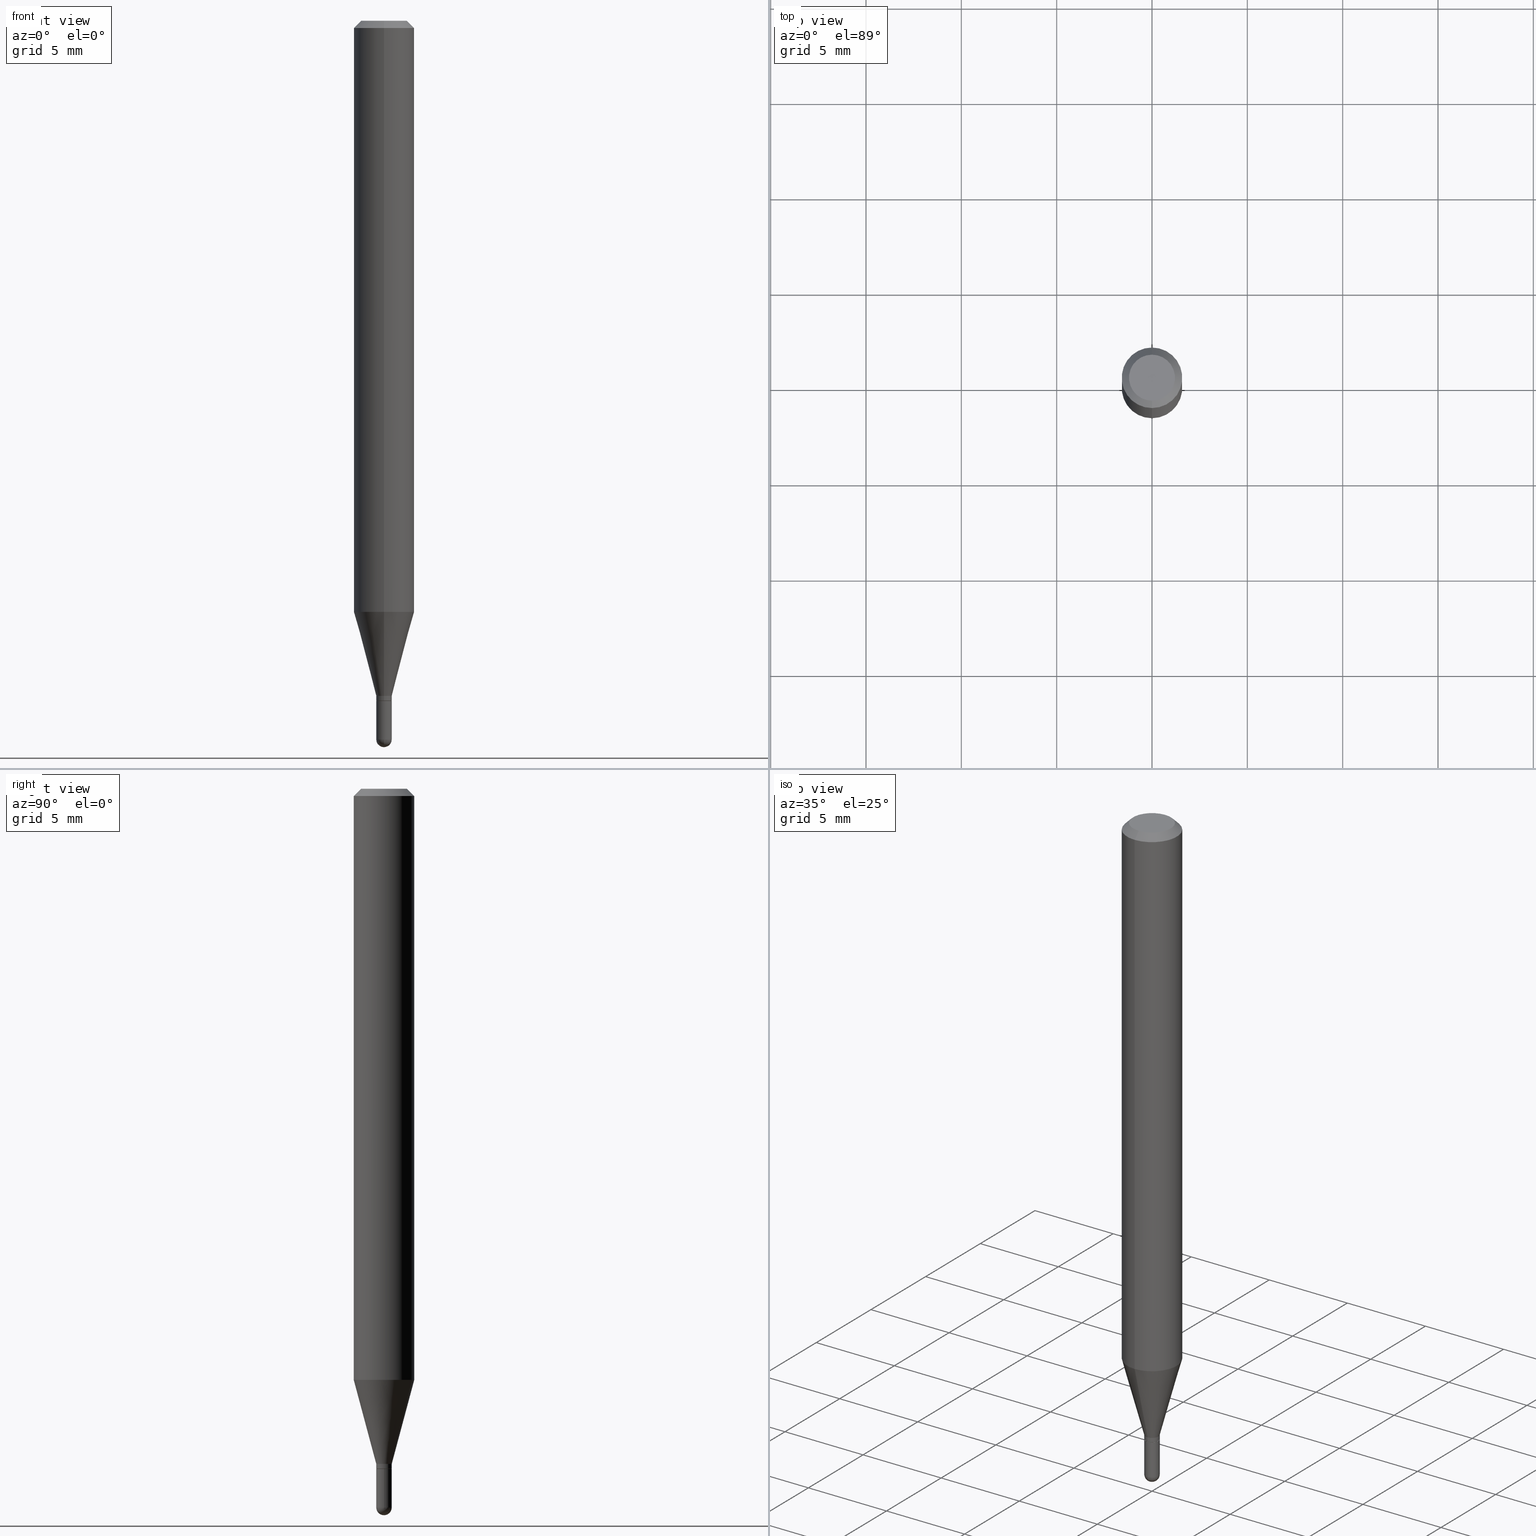
[diagram: canonical four-view strip — front | top / right | iso, engineering-drawing reading convention]
A machine part, canonical four-view strip (front | top / right | iso — engineering-drawing reading convention). The complete STEP part file that produces these views, byte-faithful:
ISO-10303-21;
HEADER;
FILE_DESCRIPTION (( 'STEP AP203' ),
    '1' );
FILE_NAME ('00470.STEP',
    '2024-03-07T17:59:03',
    ( '' ),
    ( '' ),
    'SwSTEP 2.0',
    'SolidWorks 2023',
    '' );
FILE_SCHEMA (( 'CONFIG_CONTROL_DESIGN' ));
ENDSEC;

DATA;
#1 = ORIENTED_EDGE ( 'NONE', *, *, #51, .F. ) ;
#2 = CARTESIAN_POINT ( 'NONE',  ( -1.136868377215798185E-16, -0.01600000000000519410, -1.483999999999999986 ) ) ;
#3 = DIRECTION ( 'NONE',  ( -1.000000000000000000, 6.982962677686265922E-15, -4.883557194083112340E-29 ) ) ;
#4 = EDGE_CURVE ( 'NONE', #187, #164, #233, .T. ) ;
#5 = DIRECTION ( 'NONE',  ( -2.445462374393167961E-29, 3.491490549535319671E-15, 1.000000000000000000 ) ) ;
#6 = AXIS2_PLACEMENT_3D ( 'NONE', #284, #242, #92 ) ;
#7 = CARTESIAN_POINT ( 'NONE',  ( 3.316907271900976096E-16, 0.04749999999999999362, -1.702757421449040803E-16 ) ) ;
#8 = ORIENTED_EDGE ( 'NONE', *, *, #437, .T. ) ;
#9 = DIRECTION ( 'NONE',  ( -2.445462374393167961E-29, 3.491490549535319671E-15, 1.000000000000000000 ) ) ;
#10 =( NAMED_UNIT ( * ) PLANE_ANGLE_UNIT ( ) SI_UNIT ( $, .RADIAN. ) );
#11 = CALENDAR_DATE ( 2024, 7, 3 ) ;
#12 = ORIENTED_EDGE ( 'NONE', *, *, #356, .F. ) ;
#13 = DIRECTION ( 'NONE',  ( 1.000000000000000000, -6.982962677686265922E-15, 4.883557194083112340E-29 ) ) ;
#14 = PRODUCT_DEFINITION_SHAPE ( 'NONE', 'NONE',  #508 ) ;
#15 = VECTOR ( 'NONE', #90, 39.37007874015748143 ) ;
#16 = CARTESIAN_POINT ( 'NONE',  ( 2.984588122844728288E-29, -4.261223290239161768E-15, -1.220459637448047863 ) ) ;
#17 = LOCAL_TIME ( 12, 59, 3.000000000000000000, #75 ) ;
#18 = ORIENTED_EDGE ( 'NONE', *, *, #485, .F. ) ;
#19 = LINE ( 'NONE', #183, #452 ) ;
#20 = DIRECTION ( 'NONE',  ( -2.445468806185136597E-29, 3.491481338843145583E-15, 1.000000000000000000 ) ) ;
#21 = DIRECTION ( 'NONE',  ( -2.445468806185136877E-29, 3.491481338843145188E-15, 1.000000000000000000 ) ) ;
#22 = DESIGN_CONTEXT ( 'detailed design', #447, 'design' ) ;
#23 = EDGE_CURVE ( 'NONE', #299, #40, #468, .T. ) ;
#24 = AXIS2_PLACEMENT_3D ( 'NONE', #214, #476, #53 ) ;
#25 = EDGE_LOOP ( 'NONE', ( #397, #200, #74, #409 ) ) ;
#26 = ORIENTED_EDGE ( 'NONE', *, *, #161, .T. ) ;
#27 = DIRECTION ( 'NONE',  ( -6.982962677686265922E-15, -1.000000000000000000, 0.000000000000000000 ) ) ;
#28 = EDGE_LOOP ( 'NONE', ( #291, #268, #217, #156 ) ) ;
#29 = CARTESIAN_POINT ( 'NONE',  ( -0.01600000000000000033, -4.928012215567885758E-15, -1.404000000000000137 ) ) ;
#30 = EDGE_CURVE ( 'NONE', #196, #78, #243, .T. ) ;
#31 = CARTESIAN_POINT ( 'NONE',  ( 0.000000000000000000, 0.000000000000000000, 0.000000000000000000 ) ) ;
#32 = APPROVAL_DATE_TIME ( #185, #455 ) ;
#33 = EDGE_CURVE ( 'NONE', #340, #119, #260, .T. ) ;
#34 = CARTESIAN_POINT ( 'NONE',  ( 3.433429173648007797E-29, -4.902052731547588459E-15, -1.404000000000000137 ) ) ;
#35 = DATE_AND_TIME ( #393, #246 ) ;
#36 = AXIS2_PLACEMENT_3D ( 'NONE', #203, #420, #345 ) ;
#37 = FACE_OUTER_BOUND ( 'NONE', #126, .T. ) ;
#38 = ORIENTED_EDGE ( 'NONE', *, *, #186, .F. ) ;
#39 = ORIENTED_EDGE ( 'NONE', *, *, #236, .F. ) ;
#40 = VERTEX_POINT ( 'NONE', #145 ) ;
#41 = DIRECTION ( 'NONE',  ( -6.982962677686265922E-15, -1.000000000000000000, 3.483106191921935554E-15 ) ) ;
#42 = CARTESIAN_POINT ( 'NONE',  ( 3.627707442316055177E-29, -5.183317741721863654E-15, -1.483999999999999986 ) ) ;
#43 = CARTESIAN_POINT ( 'NONE',  ( -4.364351673553618406E-16, -0.06250000000000426048, -1.220459637448047641 ) ) ;
#44 = DIRECTION ( 'NONE',  ( -2.445462374393167961E-29, 3.491490549535319671E-15, 1.000000000000000000 ) ) ;
#45 = CARTESIAN_POINT ( 'NONE',  ( 2.166650827786679282E-46, -3.093419456611862334E-32, -8.859882083952835941E-18 ) ) ;
#46 = AXIS2_PLACEMENT_3D ( 'NONE', #91, #402, #47 ) ;
#47 = DIRECTION ( 'NONE',  ( -6.982962677686265922E-15, -1.000000000000000000, 3.491490549535319276E-15 ) ) ;
#48 = CARTESIAN_POINT ( 'NONE',  ( 3.627707442316055177E-29, -5.183317741721863654E-15, -1.483999999999999986 ) ) ;
#49 = ORIENTED_EDGE ( 'NONE', *, *, #267, .T. ) ;
#50 = ORIENTED_EDGE ( 'NONE', *, *, #437, .F. ) ;
#51 = EDGE_CURVE ( 'NONE', #119, #328, #102, .T. ) ;
#52 = DIRECTION ( 'NONE',  ( -6.982962677686265922E-15, -1.000000000000000000, 0.000000000000000000 ) ) ;
#53 = DIRECTION ( 'NONE',  ( -6.982962677686265922E-15, -1.000000000000000000, 3.491490549535319671E-15 ) ) ;
#54 = CARTESIAN_POINT ( 'NONE',  ( 0.000000000000000000, 0.000000000000000000, 0.000000000000000000 ) ) ;
#55 = DIRECTION ( 'NONE',  ( -6.982962677686266711E-15, -1.000000000000000000, 3.491490549535320065E-15 ) ) ;
#56 = AXIS2_PLACEMENT_3D ( 'NONE', #383, #109, #341 ) ;
#57 = VECTOR ( 'NONE', #21, 39.37007874015748143 ) ;
#58 = CIRCLE ( 'NONE', #188, 0.06250000000000000000 ) ;
#59 = LENGTH_MEASURE_WITH_UNIT ( LENGTH_MEASURE( 0.02539999999999999897 ), #384 );
#60 = ORIENTED_EDGE ( 'NONE', *, *, #401, .T. ) ;
#61 = ORIENTED_EDGE ( 'NONE', *, *, #485, .T. ) ;
#62 = ORIENTED_EDGE ( 'NONE', *, *, #356, .T. ) ;
#63 = PERSON_AND_ORGANIZATION_ROLE ( 'design_owner' ) ;
#64 = CARTESIAN_POINT ( 'NONE',  ( 3.408974549904076448E-29, -4.867137826052236355E-15, -1.394000000000000128 ) ) ;
#65 = CIRCLE ( 'NONE', #373, 0.01600000000000000033 ) ;
#66 = APPROVAL_STATUS ( 'not_yet_approved' ) ;
#67 = CC_DESIGN_SECURITY_CLASSIFICATION ( #163, ( #462 ) ) ;
#68 = EDGE_LOOP ( 'NONE', ( #429, #486, #38, #209 ) ) ;
#69 = DIRECTION ( 'NONE',  ( -2.445462374393167961E-29, 3.491490549535319671E-15, 1.000000000000000000 ) ) ;
#70 = EDGE_CURVE ( 'NONE', #78, #340, #177, .T. ) ;
#71 = PERSON_AND_ORGANIZATION ( #326, #335 ) ;
#72 = EDGE_CURVE ( 'NONE', #327, #382, #456, .T. ) ;
#73 = ORIENTED_EDGE ( 'NONE', *, *, #4, .T. ) ;
#74 = ORIENTED_EDGE ( 'NONE', *, *, #165, .T. ) ;
#75 = COORDINATED_UNIVERSAL_TIME_OFFSET ( 5, 0, .BEHIND. ) ;
#76 = VECTOR ( 'NONE', #204, 39.37007874015748143 ) ;
#77 = APPROVAL ( #342, 'UNSPECIFIED' ) ;
#78 = VERTEX_POINT ( 'NONE', #223 ) ;
#79 = FACE_OUTER_BOUND ( 'NONE', #28, .T. ) ;
#80 = CARTESIAN_POINT ( 'NONE',  ( 3.627707442316055177E-29, -5.183317741721863654E-15, -1.483999999999999986 ) ) ;
#81 = CYLINDRICAL_SURFACE ( 'NONE', #216, 0.01600000000000000033 ) ;
#82 = DIRECTION ( 'NONE',  ( -6.982962677686265922E-15, -1.000000000000000000, 3.491490549535319671E-15 ) ) ;
#83 = DIRECTION ( 'NONE',  ( -2.445462374393167961E-29, 3.491490549535319671E-15, 1.000000000000000000 ) ) ;
#84 = ORIENTED_EDGE ( 'NONE', *, *, #379, .T. ) ;
#85 = CARTESIAN_POINT ( 'NONE',  ( 0.000000000000000000, 0.000000000000000000, 0.000000000000000000 ) ) ;
#86 = ORIENTED_EDGE ( 'NONE', *, *, #30, .F. ) ;
#87 = APPROVAL_PERSON_ORGANIZATION ( #172, #77, #297 ) ;
#88 = DIRECTION ( 'NONE',  ( -2.445462374393167961E-29, 3.491490549535319671E-15, 1.000000000000000000 ) ) ;
#89 = DIRECTION ( 'NONE',  ( 2.445462374393167681E-29, -3.491490549535319671E-15, -1.000000000000000000 ) ) ;
#90 = DIRECTION ( 'NONE',  ( -4.937700262164674260E-15, -0.7071067811865632269, 0.7071067811865319186 ) ) ;
#91 = CARTESIAN_POINT ( 'NONE',  ( 0.000000000000000000, 0.000000000000000000, 0.000000000000000000 ) ) ;
#92 = DIRECTION ( 'NONE',  ( -6.982962677686265922E-15, -1.000000000000000000, 0.000000000000000000 ) ) ;
#93 = EDGE_CURVE ( 'NONE', #328, #479, #276, .T. ) ;
#94 = AXIS2_PLACEMENT_3D ( 'NONE', #54, #5, #474 ) ;
#95 = LOCAL_TIME ( 12, 59, 3.000000000000000000, #226 ) ;
#96 = DIRECTION ( 'NONE',  ( -6.982962677686265922E-15, -1.000000000000000000, 0.000000000000000000 ) ) ;
#97 = VERTEX_POINT ( 'NONE', #337 ) ;
#98 = EDGE_CURVE ( 'NONE', #398, #479, #19, .T. ) ;
#99 = CARTESIAN_POINT ( 'NONE',  ( -1.117274028429456354E-16, -0.01600000000000479164, -1.394000000000000128 ) ) ;
#100 = SPHERICAL_SURFACE ( 'NONE', #470, 0.01600000000000002809 ) ;
#101 = ORIENTED_EDGE ( 'NONE', *, *, #4, .F. ) ;
#102 = LINE ( 'NONE', #412, #277 ) ;
#103 = DATE_TIME_ROLE ( 'creation_date' ) ;
#104 = CARTESIAN_POINT ( 'NONE',  ( 3.432206442460812014E-29, -4.900306986272821446E-15, -1.403500000000000192 ) ) ;
#105 = AXIS2_PLACEMENT_3D ( 'NONE', #45, #210, #55 ) ;
#106 = DATE_AND_TIME ( #348, #95 ) ;
#107 = FACE_OUTER_BOUND ( 'NONE', #68, .T. ) ;
#108 = COORDINATED_UNIVERSAL_TIME_OFFSET ( 5, 0, .BEHIND. ) ;
#109 = DIRECTION ( 'NONE',  ( -2.445462374393167961E-29, 3.491490549535319671E-15, 1.000000000000000000 ) ) ;
#110 = ADVANCED_FACE ( 'NONE', ( #347 ), #481, .T. ) ;
#111 = DIRECTION ( 'NONE',  ( -2.445462374393167961E-29, 3.491490549535319671E-15, 1.000000000000000000 ) ) ;
#112 = APPROVAL_ROLE ( '' ) ;
#113 = APPROVAL_STATUS ( 'not_yet_approved' ) ;
#114 = ORIENTED_EDGE ( 'NONE', *, *, #165, .F. ) ;
#115 = EDGE_LOOP ( 'NONE', ( #273, #158, #61, #237 ) ) ;
#116 = CARTESIAN_POINT ( 'NONE',  ( -1.117274028429456354E-16, -0.01600000000000479164, -1.394000000000000128 ) ) ;
#117 = AXIS2_PLACEMENT_3D ( 'NONE', #146, #111, #426 ) ;
#118 = VECTOR ( 'NONE', #230, 39.37007874015748143 ) ;
#119 = VERTEX_POINT ( 'NONE', #357 ) ;
#120 = ORIENTED_EDGE ( 'NONE', *, *, #417, .T. ) ;
#121 = ADVANCED_FACE ( 'NONE', ( #499 ), #81, .T. ) ;
#122 = CARTESIAN_POINT ( 'NONE',  ( 3.840629472727447874E-16, 0.04749999999999999362, -1.747056831868805136E-16 ) ) ;
#123 = AXIS2_PLACEMENT_3D ( 'NONE', #293, #9, #52 ) ;
#124 = CIRCLE ( 'NONE', #306, 0.06250000000000000000 ) ;
#125 = CC_DESIGN_APPROVAL ( #289, ( #508 ) ) ;
#126 = EDGE_LOOP ( 'NONE', ( #101, #49, #8, #139, #247 ) ) ;
#127 = CARTESIAN_POINT ( 'NONE',  ( 1.117274028430145868E-16, 0.01599999999999509800, -1.404000000000000137 ) ) ;
#128 = DIRECTION ( 'NONE',  ( 1.000000000000000000, -6.982962677686266711E-15, 4.876176775795935793E-29 ) ) ;
#129 = DIRECTION ( 'NONE',  ( 6.982962677686265922E-15, 1.000000000000000000, -3.491490549535319671E-15 ) ) ;
#130 = DIRECTION ( 'NONE',  ( 6.982962677686265922E-15, 1.000000000000000000, -3.483106191921935554E-15 ) ) ;
#131 = DIRECTION ( 'NONE',  ( -6.982962677686264344E-15, -1.000000000000000000, 0.000000000000000000 ) ) ;
#132 = AXIS2_PLACEMENT_3D ( 'NONE', #458, #333, #484 ) ;
#133 = AXIS2_PLACEMENT_3D ( 'NONE', #167, #331, #96 ) ;
#134 = ORIENTED_EDGE ( 'NONE', *, *, #249, .F. ) ;
#135 = LINE ( 'NONE', #290, #15 ) ;
#136 = DIRECTION ( 'NONE',  ( -2.445468806185136597E-29, 3.491481338843145583E-15, 1.000000000000000000 ) ) ;
#137 = ADVANCED_FACE ( 'NONE', ( #79 ), #443, .T. ) ;
#138 = DIRECTION ( 'NONE',  ( -6.982962677686265922E-15, -1.000000000000000000, 3.491490549535319276E-15 ) ) ;
#139 = ORIENTED_EDGE ( 'NONE', *, *, #72, .T. ) ;
#140 = MECHANICAL_CONTEXT ( 'NONE', #423, 'mechanical' ) ;
#141 = CARTESIAN_POINT ( 'NONE',  ( 1.136868377216154651E-16, 0.01599999999999992401, -5.586384879256484573E-17 ) ) ;
#142 = CARTESIAN_POINT ( 'NONE',  ( -4.364351673553912750E-16, -0.06250000000000005551, -0.01499999999999979128 ) ) ;
#143 = DIRECTION ( 'NONE',  ( -2.445462374393167961E-29, 3.491490549535319671E-15, 1.000000000000000000 ) ) ;
#144 = EDGE_CURVE ( 'NONE', #340, #363, #278, .T. ) ;
#145 = CARTESIAN_POINT ( 'NONE',  ( 1.117274028430166329E-16, 0.01599999999999483086, -1.483999999999999986 ) ) ;
#146 = CARTESIAN_POINT ( 'NONE',  ( 3.433429173648007797E-29, -4.902052731547588459E-15, -1.404000000000000137 ) ) ;
#147 = DATE_AND_TIME ( #221, #198 ) ;
#148 = CLOSED_SHELL ( 'NONE', ( #503, #294, #448, #275, #257, #197, #205, #110, #323, #317, #137, #195 ) ) ;
#149 = AXIS2_PLACEMENT_3D ( 'NONE', #48, #400, #408 ) ;
#150 = ORIENTED_EDGE ( 'NONE', *, *, #349, .F. ) ;
#151 = ORIENTED_EDGE ( 'NONE', *, *, #33, .F. ) ;
#152 = CC_DESIGN_PERSON_AND_ORGANIZATION_ASSIGNMENT ( #178, #63, ( #343 ) ) ;
#153 = CARTESIAN_POINT ( 'NONE',  ( 1.101341240428498558E-16, 0.01549999999999509930, -1.404000000000000137 ) ) ;
#154 = AXIS2_PLACEMENT_3D ( 'NONE', #166, #332, #442 ) ;
#155 = EDGE_CURVE ( 'NONE', #97, #78, #501, .T. ) ;
#156 = ORIENTED_EDGE ( 'NONE', *, *, #421, .F. ) ;
#157 = FACE_OUTER_BOUND ( 'NONE', #394, .T. ) ;
#158 = ORIENTED_EDGE ( 'NONE', *, *, #401, .F. ) ;
#159 = CARTESIAN_POINT ( 'NONE',  ( -0.01600000000000000033, -4.928012215567885758E-15, -1.483999999999999986 ) ) ;
#160 = ORIENTED_EDGE ( 'NONE', *, *, #353, .F. ) ;
#161 = EDGE_CURVE ( 'NONE', #363, #311, #465, .T. ) ;
#162 = DIRECTION ( 'NONE',  ( -2.445468806185136597E-29, 3.491481338843145583E-15, 1.000000000000000000 ) ) ;
#163 = SECURITY_CLASSIFICATION ( '', '', #360 ) ;
#164 = VERTEX_POINT ( 'NONE', #29 ) ;
#165 = EDGE_CURVE ( 'NONE', #196, #363, #194, .T. ) ;
#166 = CARTESIAN_POINT ( 'NONE',  ( 3.629075708378742535E-29, -5.181358306843227696E-15, -1.483999999999999986 ) ) ;
#167 = CARTESIAN_POINT ( 'NONE',  ( 3.408974549904076448E-29, -4.867137826052236355E-15, -1.394000000000000128 ) ) ;
#168 = DIRECTION ( 'NONE',  ( -1.000000000000000000, 6.982962677686265922E-15, -4.876176775795935793E-29 ) ) ;
#169 = CARTESIAN_POINT ( 'NONE',  ( 0.01600000000000000033, -5.153426456132482850E-15, -1.483999999999999986 ) ) ;
#170 = AXIS2_PLACEMENT_3D ( 'NONE', #377, #136, #176 ) ;
#171 = CIRCLE ( 'NONE', #105, 0.04749999999999999362 ) ;
#172 = PERSON_AND_ORGANIZATION ( #326, #335 ) ;
#173 = CARTESIAN_POINT ( 'NONE',  ( 3.667519076246360936E-29, -5.238201725704035761E-15, -1.500000000000000222 ) ) ;
#174 = DIRECTION ( 'NONE',  ( -4.851104656540964275E-15, -0.7071067811865500152, -0.7071067811865450192 ) ) ;
#175 = CARTESIAN_POINT ( 'NONE',  ( 4.364351673553919652E-16, 0.06249999999999995143, -0.01500000000000022669 ) ) ;
#176 = DIRECTION ( 'NONE',  ( 1.000000000000000000, -6.982962677686271444E-15, 0.000000000000000000 ) ) ;
#177 = LINE ( 'NONE', #141, #262 ) ;
#178 = PERSON_AND_ORGANIZATION ( #326, #335 ) ;
#179 = AXIS2_PLACEMENT_3D ( 'NONE', #184, #344, #457 ) ;
#180 = PRODUCT_RELATED_PRODUCT_CATEGORY ( 'detail', '', ( #343 ) ) ;
#181 = PERSON_AND_ORGANIZATION_ROLE ( 'design_supplier' ) ;
#182 = ORIENTED_EDGE ( 'NONE', *, *, #417, .F. ) ;
#183 = CARTESIAN_POINT ( 'NONE',  ( -4.287811248607203282E-16, -0.06250000000000005551, -0.01499999999999979128 ) ) ;
#184 = CARTESIAN_POINT ( 'NONE',  ( 0.000000000000000000, 0.000000000000000000, 0.000000000000000000 ) ) ;
#185 = DATE_AND_TIME ( #192, #17 ) ;
#186 = EDGE_CURVE ( 'NONE', #311, #119, #124, .T. ) ;
#187 = VERTEX_POINT ( 'NONE', #159 ) ;
#188 = AXIS2_PLACEMENT_3D ( 'NONE', #507, #88, #41 ) ;
#189 = APPROVAL_PERSON_ORGANIZATION ( #266, #455, #506 ) ;
#190 = PERSON_AND_ORGANIZATION ( #326, #335 ) ;
#191 = ORIENTED_EDGE ( 'NONE', *, *, #396, .T. ) ;
#192 = CALENDAR_DATE ( 2024, 7, 3 ) ;
#193 = ORIENTED_EDGE ( 'NONE', *, *, #353, .T. ) ;
#194 = LINE ( 'NONE', #399, #351 ) ;
#195 = ADVANCED_FACE ( 'NONE', ( #477 ), #441, .T. ) ;
#196 = VERTEX_POINT ( 'NONE', #330 ) ;
#197 = ADVANCED_FACE ( 'NONE', ( #407 ), #350, .T. ) ;
#198 = LOCAL_TIME ( 12, 59, 3.000000000000000000, #108 ) ;
#199 = ORIENTED_EDGE ( 'NONE', *, *, #51, .T. ) ;
#200 = ORIENTED_EDGE ( 'NONE', *, *, #421, .T. ) ;
#201 = DIMENSIONAL_EXPONENTS ( 1.000000000000000000, 0.000000000000000000, 0.000000000000000000, 0.000000000000000000, 0.000000000000000000, 0.000000000000000000, 0.000000000000000000 ) ;
#202 = CARTESIAN_POINT ( 'NONE',  ( 2.984588122844728288E-29, -4.261223290239161768E-15, -1.220459637448047863 ) ) ;
#203 = CARTESIAN_POINT ( 'NONE',  ( 3.433429173648007797E-29, -4.902052731547588459E-15, -1.404000000000000137 ) ) ;
#204 = DIRECTION ( 'NONE',  ( -2.445462374393167961E-29, 3.491490549535319671E-15, 1.000000000000000000 ) ) ;
#205 = ADVANCED_FACE ( 'NONE', ( #212 ), #449, .T. ) ;
#206 = CARTESIAN_POINT ( 'NONE',  ( -3.773273898774340269E-16, -0.04749999999999999362, 1.569859190189748294E-16 ) ) ;
#207 = CIRCLE ( 'NONE', #269, 0.01600000000000000033 ) ;
#208 = AXIS2_PLACEMENT_3D ( 'NONE', #478, #445, #130 ) ;
#209 = ORIENTED_EDGE ( 'NONE', *, *, #161, .F. ) ;
#210 = DIRECTION ( 'NONE',  ( -2.445462374393167961E-29, 3.491490549535319671E-15, 1.000000000000000000 ) ) ;
#211 = ORIENTED_EDGE ( 'NONE', *, *, #236, .T. ) ;
#212 = FACE_OUTER_BOUND ( 'NONE', #318, .T. ) ;
#213 = FACE_OUTER_BOUND ( 'NONE', #219, .T. ) ;
#214 = CARTESIAN_POINT ( 'NONE',  ( 3.433429173648007797E-29, -4.902052731547588459E-15, -1.404000000000000137 ) ) ;
#215 = VECTOR ( 'NONE', #466, 39.37007874015748143 ) ;
#216 = AXIS2_PLACEMENT_3D ( 'NONE', #469, #20, #303 ) ;
#217 = ORIENTED_EDGE ( 'NONE', *, *, #367, .T. ) ;
#218 = DIRECTION ( 'NONE',  ( -6.982962677686264344E-15, -1.000000000000000000, 0.000000000000000000 ) ) ;
#219 = EDGE_LOOP ( 'NONE', ( #493, #191, #459, #150 ) ) ;
#220 = CC_DESIGN_PERSON_AND_ORGANIZATION_ASSIGNMENT ( #190, #497, ( #163 ) ) ;
#221 = CALENDAR_DATE ( 2024, 7, 3 ) ;
#222 = ORIENTED_EDGE ( 'NONE', *, *, #374, .T. ) ;
#223 = CARTESIAN_POINT ( 'NONE',  ( 1.136868377216494354E-16, 0.01599999999999496963, -1.403500000000000192 ) ) ;
#224 = CIRCLE ( 'NONE', #170, 0.01600000000000000033 ) ;
#225 = CIRCLE ( 'NONE', #254, 0.01600000000000000033 ) ;
#226 = COORDINATED_UNIVERSAL_TIME_OFFSET ( 5, 0, .BEHIND. ) ;
#227 = ORIENTED_EDGE ( 'NONE', *, *, #396, .F. ) ;
#228 = CARTESIAN_POINT ( 'NONE',  ( 0.01600000000000000033, -1.117274028429802713E-16, 7.801882841273497199E-31 ) ) ;
#229 = ADVANCED_FACE ( 'NONE', ( #37 ), #435, .T. ) ;
#230 = DIRECTION ( 'NONE',  ( 4.937700262164548042E-15, 0.7071067811865451302, -0.7071067811865499042 ) ) ;
#231 = DIRECTION ( 'NONE',  ( -2.445462374393167961E-29, 3.491490549535319671E-15, 1.000000000000000000 ) ) ;
#232 = AXIS2_PLACEMENT_3D ( 'NONE', #80, #13, #386 ) ;
#233 = LINE ( 'NONE', #314, #215 ) ;
#234 = DIRECTION ( 'NONE',  ( -1.807323732225330928E-15, -0.2588190451025182970, 0.9659258262890689783 ) ) ;
#235 = ORIENTED_EDGE ( 'NONE', *, *, #186, .T. ) ;
#236 = EDGE_CURVE ( 'NONE', #479, #328, #58, .T. ) ;
#237 = ORIENTED_EDGE ( 'NONE', *, *, #93, .T. ) ;
#238 = DIRECTION ( 'NONE',  ( -2.445468806185136597E-29, 3.491481338843145583E-15, 1.000000000000000000 ) ) ;
#239 = AXIS2_PLACEMENT_3D ( 'NONE', #16, #83, #270 ) ;
#240 = CC_DESIGN_APPROVAL ( #77, ( #462 ) ) ;
#241 = CARTESIAN_POINT ( 'NONE',  ( 3.629075708378742535E-29, -5.181358306843227696E-15, -1.483999999999999986 ) ) ;
#242 = DIRECTION ( 'NONE',  ( -2.445462374393167961E-29, 3.491490549535319671E-15, 1.000000000000000000 ) ) ;
#243 = CIRCLE ( 'NONE', #358, 0.01599999999999992747 ) ;
#244 = DIRECTION ( 'NONE',  ( -2.445468806185136597E-29, 3.491481338843145583E-15, 1.000000000000000000 ) ) ;
#245 = AXIS2_PLACEMENT_3D ( 'NONE', #42, #3, #510 ) ;
#246 = LOCAL_TIME ( 12, 59, 3.000000000000000000, #355 ) ;
#247 = ORIENTED_EDGE ( 'NONE', *, *, #258, .F. ) ;
#248 = DIRECTION ( 'NONE',  ( -6.982962677686266711E-15, -1.000000000000000000, 3.491490549535320065E-15 ) ) ;
#249 = EDGE_CURVE ( 'NONE', #97, #472, #381, .T. ) ;
#250 = PLANE ( 'NONE',  #295 ) ;
#251 = FACE_OUTER_BOUND ( 'NONE', #378, .T. ) ;
#252 = DIRECTION ( 'NONE',  ( -1.000000000000000000, 6.982962677686265922E-15, -4.883557194083112340E-29 ) ) ;
#253 = CONICAL_SURFACE ( 'NONE', #117, 0.01550000000000000162, 0.7853981633974739252 ) ;
#254 = AXIS2_PLACEMENT_3D ( 'NONE', #241, #162, #366 ) ;
#255 = EDGE_LOOP ( 'NONE', ( #406, #73, #12, #494, #84 ) ) ;
#256 = CYLINDRICAL_SURFACE ( 'NONE', #320, 0.01599999999999992401 ) ;
#257 = ADVANCED_FACE ( 'NONE', ( #107 ), #334, .T. ) ;
#258 = EDGE_CURVE ( 'NONE', #164, #382, #359, .T. ) ;
#259 = APPROVAL_DATE_TIME ( #147, #77 ) ;
#260 = LINE ( 'NONE', #451, #413 ) ;
#261 = ADVANCED_FACE ( 'NONE', ( #251 ), #100, .T. ) ;
#262 = VECTOR ( 'NONE', #300, 39.37007874015748143 ) ;
#263 = AXIS2_PLACEMENT_3D ( 'NONE', #85, #238, #128 ) ;
#264 = APPLICATION_PROTOCOL_DEFINITION ( 'international standard', 'config_control_design', 1994, #423 ) ;
#265 = ORIENTED_EDGE ( 'NONE', *, *, #374, .F. ) ;
#266 = PERSON_AND_ORGANIZATION ( #326, #335 ) ;
#267 = EDGE_CURVE ( 'NONE', #187, #362, #224, .T. ) ;
#268 = ORIENTED_EDGE ( 'NONE', *, *, #249, .T. ) ;
#269 = AXIS2_PLACEMENT_3D ( 'NONE', #483, #364, #281 ) ;
#270 = DIRECTION ( 'NONE',  ( -6.982962677686265922E-15, -1.000000000000000000, 4.370956789862821150E-15 ) ) ;
#271 = ORIENTED_EDGE ( 'NONE', *, *, #30, .T. ) ;
#272 = DATE_TIME_ROLE ( 'classification_date' ) ;
#273 = ORIENTED_EDGE ( 'NONE', *, *, #98, .F. ) ;
#274 = ORIENTED_EDGE ( 'NONE', *, *, #155, .T. ) ;
#275 = ADVANCED_FACE ( 'NONE', ( #339 ), #310, .T. ) ;
#276 = CIRCLE ( 'NONE', #56, 0.06250000000000000000 ) ;
#277 = VECTOR ( 'NONE', #375, 39.37007874015748143 ) ;
#278 = CIRCLE ( 'NONE', #490, 0.01599999999999992401 ) ;
#279 = CARTESIAN_POINT ( 'NONE',  ( -4.364351673553916201E-16, -0.06250000000000000000, 2.182181593459574794E-16 ) ) ;
#280 = CIRCLE ( 'NONE', #133, 0.01599999999999992401 ) ;
#281 = DIRECTION ( 'NONE',  ( 1.000000000000000000, -6.982962677686271444E-15, 0.000000000000000000 ) ) ;
#282 = ORIENTED_EDGE ( 'NONE', *, *, #98, .T. ) ;
#283 = DIRECTION ( 'NONE',  ( 2.438088387897960049E-29, -3.491481338843145188E-15, -1.000000000000000000 ) ) ;
#284 = CARTESIAN_POINT ( 'NONE',  ( 3.433429173648007797E-29, -4.902052731547588459E-15, -1.404000000000000137 ) ) ;
#285 = ORIENTED_EDGE ( 'NONE', *, *, #258, .T. ) ;
#286 = PLANE ( 'NONE',  #24 ) ;
#287 = VECTOR ( 'NONE', #312, 39.37007874015748143 ) ;
#288 = CONICAL_SURFACE ( 'NONE', #208, 0.06250000000000000000, 0.7853981633974483900 ) ;
#289 = APPROVAL ( #66, 'UNSPECIFIED' ) ;
#290 = CARTESIAN_POINT ( 'NONE',  ( -1.082359215041027885E-16, -0.01550000000000490395, -1.404000000000000137 ) ) ;
#291 = ORIENTED_EDGE ( 'NONE', *, *, #155, .F. ) ;
#292 = DIRECTION ( 'NONE',  ( 6.982962677686265922E-15, 1.000000000000000000, 0.000000000000000000 ) ) ;
#293 = CARTESIAN_POINT ( 'NONE',  ( 3.408974549904076448E-29, -4.867137826052236355E-15, -1.394000000000000128 ) ) ;
#294 = ADVANCED_FACE ( 'NONE', ( #424 ), #253, .T. ) ;
#295 = AXIS2_PLACEMENT_3D ( 'NONE', #7, #89, #129 ) ;
#296 = AXIS2_PLACEMENT_3D ( 'NONE', #324, #475, #131 ) ;
#297 = APPROVAL_ROLE ( '' ) ;
#298 = EDGE_CURVE ( 'NONE', #119, #311, #403, .T. ) ;
#299 = VERTEX_POINT ( 'NONE', #173 ) ;
#300 = DIRECTION ( 'NONE',  ( -2.445462374393167961E-29, 3.491490549535319671E-15, 1.000000000000000000 ) ) ;
#301 =( NAMED_UNIT ( * ) SI_UNIT ( $, .STERADIAN. ) SOLID_ANGLE_UNIT ( ) );
#302 = DIRECTION ( 'NONE',  ( -6.982962677686265922E-15, -1.000000000000000000, 0.000000000000000000 ) ) ;
#303 = DIRECTION ( 'NONE',  ( 1.000000000000000000, -6.982962677686266711E-15, 4.876176775795935793E-29 ) ) ;
#304 = CC_DESIGN_PERSON_AND_ORGANIZATION_ASSIGNMENT ( #336, #487, ( #462 ) ) ;
#305 = ORIENTED_EDGE ( 'NONE', *, *, #93, .F. ) ;
#306 = AXIS2_PLACEMENT_3D ( 'NONE', #202, #44, #329 ) ;
#307 = AXIS2_PLACEMENT_3D ( 'NONE', #369, #436, #248 ) ;
#308 = EDGE_LOOP ( 'NONE', ( #60, #120 ) ) ;
#309 = DIRECTION ( 'NONE',  ( -2.445462374393167961E-29, 3.491490549535319671E-15, 1.000000000000000000 ) ) ;
#310 = CYLINDRICAL_SURFACE ( 'NONE', #461, 0.06250000000000000000 ) ;
#311 = VERTEX_POINT ( 'NONE', #43 ) ;
#312 = DIRECTION ( 'NONE',  ( 5.024295867788190974E-15, 0.7071067811865681119, 0.7071067811865270336 ) ) ;
#313 = CC_DESIGN_DATE_AND_TIME_ASSIGNMENT ( #106, #103, ( #508 ) ) ;
#314 = CARTESIAN_POINT ( 'NONE',  ( -0.01600000000000000033, 1.136868377216160321E-16, -7.870296144407849335E-31 ) ) ;
#315 = ADVANCED_FACE ( 'NONE', ( #157 ), #467, .F. ) ;
#316 = VECTOR ( 'NONE', #234, 39.37007874015748143 ) ;
#317 = ADVANCED_FACE ( 'NONE', ( #372 ), #286, .F. ) ;
#318 = EDGE_LOOP ( 'NONE', ( #1, #500, #193, #305 ) ) ;
#319 = CARTESIAN_POINT ( 'NONE',  ( 0.01600000000000000033, -5.013767202578757042E-15, -1.404000000000000137 ) ) ;
#320 = AXIS2_PLACEMENT_3D ( 'NONE', #491, #418, #138 ) ;
#321 = SPHERICAL_SURFACE ( 'NONE', #245, 0.01600000000000002809 ) ;
#322 = EDGE_LOOP ( 'NONE', ( #235, #199, #39, #160 ) ) ;
#323 = ADVANCED_FACE ( 'NONE', ( #371 ), #250, .F. ) ;
#324 = CARTESIAN_POINT ( 'NONE',  ( 3.432206442460812014E-29, -4.900306986272821446E-15, -1.403500000000000192 ) ) ;
#325 = ADVANCED_FACE ( 'NONE', ( #213 ), #321, .T. ) ;
#326 = PERSON ( 'UNSPECIFIED', 'UNSPECIFIED', 'UNSPECIFIED', ('UNSPECIFIED'), ('UNSPECIFIED'), ('UNSPECIFIED') ) ;
#327 = VERTEX_POINT ( 'NONE', #169 ) ;
#328 = VERTEX_POINT ( 'NONE', #480 ) ;
#329 = DIRECTION ( 'NONE',  ( -6.982962677686265922E-15, -1.000000000000000000, 4.370956789862821150E-15 ) ) ;
#330 = CARTESIAN_POINT ( 'NONE',  ( -1.117274028429457833E-16, -0.01600000000000488184, -1.403500000000000192 ) ) ;
#331 = DIRECTION ( 'NONE',  ( -2.445462374393167961E-29, 3.491490549535319671E-15, 1.000000000000000000 ) ) ;
#332 = DIRECTION ( 'NONE',  ( -2.445468806185136597E-29, 3.491481338843145583E-15, 1.000000000000000000 ) ) ;
#333 = DIRECTION ( 'NONE',  ( -2.445468806185136597E-29, 3.491481338843145583E-15, 1.000000000000000000 ) ) ;
#334 = CONICAL_SURFACE ( 'NONE', #431, 0.01599999999999992401, 0.2617993877991502960 ) ;
#335 = ORGANIZATION ( 'UNSPECIFIED', 'UNSPECIFIED', '' ) ;
#336 = PERSON_AND_ORGANIZATION ( #326, #335 ) ;
#337 = CARTESIAN_POINT ( 'NONE',  ( 1.119104808822498490E-16, 0.01549999999999509930, -1.404000000000000137 ) ) ;
#338 = FACE_OUTER_BOUND ( 'NONE', #370, .T. ) ;
#339 = FACE_OUTER_BOUND ( 'NONE', #322, .T. ) ;
#340 = VERTEX_POINT ( 'NONE', #438 ) ;
#341 = DIRECTION ( 'NONE',  ( -6.982962677686265922E-15, -1.000000000000000000, 3.483106191921935554E-15 ) ) ;
#342 = APPROVAL_STATUS ( 'not_yet_approved' ) ;
#343 = PRODUCT ( '00470', '00470', '', ( #140 ) ) ;
#344 = DIRECTION ( 'NONE',  ( 0.000000000000000000, 0.000000000000000000, 1.000000000000000000 ) ) ;
#345 = DIRECTION ( 'NONE',  ( -6.982962677686265922E-15, -1.000000000000000000, 0.000000000000000000 ) ) ;
#346 = ORIENTED_EDGE ( 'NONE', *, *, #464, .F. ) ;
#347 = FACE_OUTER_BOUND ( 'NONE', #115, .T. ) ;
#348 = CALENDAR_DATE ( 2024, 7, 3 ) ;
#349 = EDGE_CURVE ( 'NONE', #40, #187, #422, .T. ) ;
#350 = CONICAL_SURFACE ( 'NONE', #123, 0.01599999999999992401, 0.2617993877991502960 ) ;
#351 = VECTOR ( 'NONE', #368, 39.37007874015748143 ) ;
#352 = SHAPE_DEFINITION_REPRESENTATION ( #14, #427 ) ;
#353 = EDGE_CURVE ( 'NONE', #311, #479, #405, .T. ) ;
#354 = UNCERTAINTY_MEASURE_WITH_UNIT (LENGTH_MEASURE( 1.000000000000000082E-05 ), #454, 'distance_accuracy_value', 'NONE');
#355 = COORDINATED_UNIVERSAL_TIME_OFFSET ( 5, 0, .BEHIND. ) ;
#356 = EDGE_CURVE ( 'NONE', #382, #164, #207, .T. ) ;
#357 = CARTESIAN_POINT ( 'NONE',  ( 4.440892098500920998E-16, 0.06249999999999571176, -1.220459637448048085 ) ) ;
#358 = AXIS2_PLACEMENT_3D ( 'NONE', #104, #69, #218 ) ;
#359 = CIRCLE ( 'NONE', #132, 0.01600000000000000033 ) ;
#360 = SECURITY_CLASSIFICATION_LEVEL ( 'unclassified' ) ;
#361 = ORIENTED_EDGE ( 'NONE', *, *, #144, .T. ) ;
#362 = VERTEX_POINT ( 'NONE', #2 ) ;
#363 = VERTEX_POINT ( 'NONE', #99 ) ;
#364 = DIRECTION ( 'NONE',  ( -2.445468806185136597E-29, 3.491481338843145583E-15, 1.000000000000000000 ) ) ;
#365 = AXIS2_PLACEMENT_3D ( 'NONE', #495, #392, #439 ) ;
#366 = DIRECTION ( 'NONE',  ( 1.000000000000000000, -6.982962677686271444E-15, 0.000000000000000000 ) ) ;
#367 = EDGE_CURVE ( 'NONE', #472, #196, #135, .T. ) ;
#368 = DIRECTION ( 'NONE',  ( -2.445462374393167961E-29, 3.491490549535319671E-15, 1.000000000000000000 ) ) ;
#369 = CARTESIAN_POINT ( 'NONE',  ( 2.166650827786679282E-46, -3.093419456611862334E-32, -8.859882083952835941E-18 ) ) ;
#370 = EDGE_LOOP ( 'NONE', ( #271, #395, #346, #114 ) ) ;
#371 = FACE_OUTER_BOUND ( 'NONE', #308, .T. ) ;
#372 = FACE_OUTER_BOUND ( 'NONE', #446, .T. ) ;
#373 = AXIS2_PLACEMENT_3D ( 'NONE', #450, #244, #410 ) ;
#374 = EDGE_CURVE ( 'NONE', #472, #97, #505, .T. ) ;
#375 = DIRECTION ( 'NONE',  ( -2.445462374393167961E-29, 3.491490549535319671E-15, 1.000000000000000000 ) ) ;
#376 = PERSON_AND_ORGANIZATION ( #326, #335 ) ;
#377 = CARTESIAN_POINT ( 'NONE',  ( 3.629075708378742535E-29, -5.181358306843227696E-15, -1.483999999999999986 ) ) ;
#378 = EDGE_LOOP ( 'NONE', ( #227, #504, #385, #50 ) ) ;
#379 = EDGE_CURVE ( 'NONE', #327, #40, #65, .T. ) ;
#380 = CARTESIAN_POINT ( 'NONE',  ( -1.082359215041027885E-16, -0.01550000000000490395, -1.404000000000000137 ) ) ;
#381 = CIRCLE ( 'NONE', #36, 0.01550000000000000162 ) ;
#382 = VERTEX_POINT ( 'NONE', #319 ) ;
#383 = CARTESIAN_POINT ( 'NONE',  ( 3.668193561589754009E-31, -5.237235824302982637E-17, -0.01500000000000000812 ) ) ;
#384 =( LENGTH_UNIT ( ) NAMED_UNIT ( * ) SI_UNIT ( $, .METRE. ) );
#385 = ORIENTED_EDGE ( 'NONE', *, *, #379, .F. ) ;
#386 = DIRECTION ( 'NONE',  ( 6.982962677686265133E-15, 1.000000000000000000, 0.000000000000000000 ) ) ;
#387 = DATE_AND_TIME ( #11, #471 ) ;
#388 = CARTESIAN_POINT ( 'NONE',  ( 3.408974549904076448E-29, -4.867137826052236355E-15, -1.394000000000000128 ) ) ;
#389 = VERTEX_POINT ( 'NONE', #122 ) ;
#390 = DIRECTION ( 'NONE',  ( -6.982962677686265922E-15, -1.000000000000000000, 0.000000000000000000 ) ) ;
#391 = AXIS2_PLACEMENT_3D ( 'NONE', #34, #463, #390 ) ;
#392 = DIRECTION ( 'NONE',  ( 2.445462374393167961E-29, -3.491490549535319671E-15, -1.000000000000000000 ) ) ;
#393 = CALENDAR_DATE ( 2024, 7, 3 ) ;
#394 = EDGE_LOOP ( 'NONE', ( #62, #285 ) ) ;
#395 = ORIENTED_EDGE ( 'NONE', *, *, #70, .T. ) ;
#396 = EDGE_CURVE ( 'NONE', #299, #362, #404, .T. ) ;
#397 = ORIENTED_EDGE ( 'NONE', *, *, #70, .F. ) ;
#398 = VERTEX_POINT ( 'NONE', #206 ) ;
#399 = CARTESIAN_POINT ( 'NONE',  ( -1.117274028429797290E-16, -0.01599999999999992401, 5.586384879256484573E-17 ) ) ;
#400 = DIRECTION ( 'NONE',  ( -1.000000000000000000, 7.105427357601001070E-15, -4.926315508542082329E-29 ) ) ;
#401 = EDGE_CURVE ( 'NONE', #389, #398, #171, .T. ) ;
#402 = DIRECTION ( 'NONE',  ( -2.445462374393167961E-29, 3.491490549535319671E-15, 1.000000000000000000 ) ) ;
#403 = CIRCLE ( 'NONE', #239, 0.06250000000000000000 ) ;
#404 = CIRCLE ( 'NONE', #149, 0.01600000000000002809 ) ;
#405 = LINE ( 'NONE', #279, #76 ) ;
#406 = ORIENTED_EDGE ( 'NONE', *, *, #349, .T. ) ;
#407 = FACE_OUTER_BOUND ( 'NONE', #509, .T. ) ;
#408 = DIRECTION ( 'NONE',  ( -7.105427357601000281E-15, -1.000000000000000000, 0.000000000000000000 ) ) ;
#409 = ORIENTED_EDGE ( 'NONE', *, *, #144, .F. ) ;
#410 = DIRECTION ( 'NONE',  ( 1.000000000000000000, -6.982962677686271444E-15, 0.000000000000000000 ) ) ;
#411 = CARTESIAN_POINT ( 'NONE',  ( 3.627707442316055177E-29, -5.183317741721863654E-15, -1.483999999999999986 ) ) ;
#412 = CARTESIAN_POINT ( 'NONE',  ( 4.440892098500625669E-16, 0.06250000000000000000, -2.182181593459574794E-16 ) ) ;
#413 = VECTOR ( 'NONE', #488, 39.37007874015748143 ) ;
#414 = APPLICATION_PROTOCOL_DEFINITION ( 'international standard', 'config_control_design', 1994, #447 ) ;
#415 =( GEOMETRIC_REPRESENTATION_CONTEXT ( 3 ) GLOBAL_UNCERTAINTY_ASSIGNED_CONTEXT ( ( #354 ) ) GLOBAL_UNIT_ASSIGNED_CONTEXT ( ( #454, #10, #301 ) ) REPRESENTATION_CONTEXT ( 'NONE', 'WORKASPACE' ) );
#416 = CIRCLE ( 'NONE', #307, 0.04749999999999999362 ) ;
#417 = EDGE_CURVE ( 'NONE', #398, #389, #416, .T. ) ;
#418 = DIRECTION ( 'NONE',  ( -2.445462374393167961E-29, 3.491490549535319671E-15, 1.000000000000000000 ) ) ;
#419 = PERSON_AND_ORGANIZATION ( #326, #335 ) ;
#420 = DIRECTION ( 'NONE',  ( -2.445462374393167961E-29, 3.491490549535319671E-15, 1.000000000000000000 ) ) ;
#421 = EDGE_CURVE ( 'NONE', #78, #196, #498, .T. ) ;
#422 = CIRCLE ( 'NONE', #154, 0.01600000000000000033 ) ;
#423 = APPLICATION_CONTEXT ( 'configuration controlled 3d designs of mechanical parts and assemblies' ) ;
#424 = FACE_OUTER_BOUND ( 'NONE', #473, .T. ) ;
#425 = APPROVAL_DATE_TIME ( #387, #289 ) ;
#426 = DIRECTION ( 'NONE',  ( -6.982962677686265922E-15, -1.000000000000000000, 0.000000000000000000 ) ) ;
#427 = ADVANCED_BREP_SHAPE_REPRESENTATION ( '00470', ( #434, #430, #179 ), #415 ) ;
#428 = CC_DESIGN_PERSON_AND_ORGANIZATION_ASSIGNMENT ( #419, #181, ( #462 ) ) ;
#429 = ORIENTED_EDGE ( 'NONE', *, *, #464, .T. ) ;
#430 = MANIFOLD_SOLID_BREP ( 'Body-Move/Copy2[2]', #148 ) ;
#431 = AXIS2_PLACEMENT_3D ( 'NONE', #64, #143, #302 ) ;
#432 = ORIENTED_EDGE ( 'NONE', *, *, #298, .F. ) ;
#433 = CC_DESIGN_DATE_AND_TIME_ASSIGNMENT ( #35, #272, ( #163 ) ) ;
#434 = MANIFOLD_SOLID_BREP ( 'Body-Move/Copy2[1]', #460 ) ;
#435 = CYLINDRICAL_SURFACE ( 'NONE', #263, 0.01600000000000000033 ) ;
#436 = DIRECTION ( 'NONE',  ( -2.445462374393167961E-29, 3.491490549535319671E-15, 1.000000000000000000 ) ) ;
#437 = EDGE_CURVE ( 'NONE', #362, #327, #225, .T. ) ;
#438 = CARTESIAN_POINT ( 'NONE',  ( 2.788880237858710265E-16, 0.01599999999999505637, -1.394000000000000128 ) ) ;
#439 = DIRECTION ( 'NONE',  ( 6.982962677686265922E-15, 1.000000000000000000, -3.483106191921935554E-15 ) ) ;
#440 = ORIENTED_EDGE ( 'NONE', *, *, #367, .F. ) ;
#441 = CYLINDRICAL_SURFACE ( 'NONE', #46, 0.01599999999999992401 ) ;
#442 = DIRECTION ( 'NONE',  ( 1.000000000000000000, -6.982962677686271444E-15, 0.000000000000000000 ) ) ;
#443 = CONICAL_SURFACE ( 'NONE', #391, 0.01550000000000000162, 0.7853981633974739252 ) ;
#444 = CC_DESIGN_APPROVAL ( #455, ( #163 ) ) ;
#445 = DIRECTION ( 'NONE',  ( 2.445462374393167961E-29, -3.491490549535319671E-15, -1.000000000000000000 ) ) ;
#446 = EDGE_LOOP ( 'NONE', ( #265, #134 ) ) ;
#447 = APPLICATION_CONTEXT ( 'configuration controlled 3d designs of mechanical parts and assemblies' ) ;
#448 = ADVANCED_FACE ( 'NONE', ( #512 ), #288, .T. ) ;
#449 = CYLINDRICAL_SURFACE ( 'NONE', #94, 0.06250000000000000000 ) ;
#450 = CARTESIAN_POINT ( 'NONE',  ( 3.629075708378742535E-29, -5.181358306843227696E-15, -1.483999999999999986 ) ) ;
#451 = CARTESIAN_POINT ( 'NONE',  ( 1.136868377216495587E-16, 0.01599999999999505637, -1.394000000000000128 ) ) ;
#452 = VECTOR ( 'NONE', #174, 39.37007874015748143 ) ;
#453 = COORDINATED_UNIVERSAL_TIME_OFFSET ( 5, 0, .BEHIND. ) ;
#454 =( CONVERSION_BASED_UNIT ( 'INCH', #59 ) LENGTH_UNIT ( ) NAMED_UNIT ( #201 ) );
#455 = APPROVAL ( #113, 'UNSPECIFIED' ) ;
#456 = LINE ( 'NONE', #228, #57 ) ;
#457 = DIRECTION ( 'NONE',  ( 1.000000000000000000, 0.000000000000000000, 0.000000000000000000 ) ) ;
#458 = CARTESIAN_POINT ( 'NONE',  ( 3.433438203883931854E-29, -4.902039799735776870E-15, -1.404000000000000137 ) ) ;
#459 = ORIENTED_EDGE ( 'NONE', *, *, #267, .F. ) ;
#460 = CLOSED_SHELL ( 'NONE', ( #121, #325, #315, #261, #229 ) ) ;
#461 = AXIS2_PLACEMENT_3D ( 'NONE', #31, #231, #82 ) ;
#462 = PRODUCT_DEFINITION_FORMATION_WITH_SPECIFIED_SOURCE ( 'ANY', '', #343, .NOT_KNOWN. ) ;
#463 = DIRECTION ( 'NONE',  ( -2.445462374393167961E-29, 3.491490549535319671E-15, 1.000000000000000000 ) ) ;
#464 = EDGE_CURVE ( 'NONE', #363, #340, #280, .T. ) ;
#465 = LINE ( 'NONE', #116, #316 ) ;
#466 = DIRECTION ( 'NONE',  ( -2.445468806185136877E-29, 3.491481338843145188E-15, 1.000000000000000000 ) ) ;
#467 = PLANE ( 'NONE',  #511 ) ;
#468 = CIRCLE ( 'NONE', #232, 0.01600000000000002809 ) ;
#469 = CARTESIAN_POINT ( 'NONE',  ( 0.000000000000000000, 0.000000000000000000, 0.000000000000000000 ) ) ;
#470 = AXIS2_PLACEMENT_3D ( 'NONE', #411, #252, #292 ) ;
#471 = LOCAL_TIME ( 12, 59, 3.000000000000000000, #453 ) ;
#472 = VERTEX_POINT ( 'NONE', #380 ) ;
#473 = EDGE_LOOP ( 'NONE', ( #222, #274, #86, #440 ) ) ;
#474 = DIRECTION ( 'NONE',  ( -6.982962677686265922E-15, -1.000000000000000000, 3.491490549535319671E-15 ) ) ;
#475 = DIRECTION ( 'NONE',  ( -2.445462374393167961E-29, 3.491490549535319671E-15, 1.000000000000000000 ) ) ;
#476 = DIRECTION ( 'NONE',  ( -2.445462374393167681E-29, 3.491490549535319671E-15, 1.000000000000000000 ) ) ;
#477 = FACE_OUTER_BOUND ( 'NONE', #25, .T. ) ;
#478 = CARTESIAN_POINT ( 'NONE',  ( 3.668193561589754009E-31, -5.237235824302982637E-17, -0.01500000000000000812 ) ) ;
#479 = VERTEX_POINT ( 'NONE', #142 ) ;
#480 = CARTESIAN_POINT ( 'NONE',  ( 4.440892098500924943E-16, 0.06249999999999993755, -0.01500000000000022669 ) ) ;
#481 = CONICAL_SURFACE ( 'NONE', #365, 0.06250000000000000000, 0.7853981633974483900 ) ;
#482 = APPROVAL_PERSON_ORGANIZATION ( #376, #289, #112 ) ;
#483 = CARTESIAN_POINT ( 'NONE',  ( 3.433438203883931854E-29, -4.902039799735776870E-15, -1.404000000000000137 ) ) ;
#484 = DIRECTION ( 'NONE',  ( 1.000000000000000000, -6.982962677686271444E-15, 0.000000000000000000 ) ) ;
#485 = EDGE_CURVE ( 'NONE', #389, #328, #492, .T. ) ;
#486 = ORIENTED_EDGE ( 'NONE', *, *, #33, .T. ) ;
#487 = PERSON_AND_ORGANIZATION_ROLE ( 'creator' ) ;
#488 = DIRECTION ( 'NONE',  ( 1.839019923739601104E-15, 0.2588190451025250693, 0.9659258262890670910 ) ) ;
#489 = CC_DESIGN_PERSON_AND_ORGANIZATION_ASSIGNMENT ( #71, #496, ( #508 ) ) ;
#490 = AXIS2_PLACEMENT_3D ( 'NONE', #388, #309, #27 ) ;
#491 = CARTESIAN_POINT ( 'NONE',  ( 0.000000000000000000, 0.000000000000000000, 0.000000000000000000 ) ) ;
#492 = LINE ( 'NONE', #175, #118 ) ;
#493 = ORIENTED_EDGE ( 'NONE', *, *, #23, .F. ) ;
#494 = ORIENTED_EDGE ( 'NONE', *, *, #72, .F. ) ;
#495 = CARTESIAN_POINT ( 'NONE',  ( 3.668193561589754009E-31, -5.237235824302982637E-17, -0.01500000000000000812 ) ) ;
#496 = PERSON_AND_ORGANIZATION_ROLE ( 'creator' ) ;
#497 = PERSON_AND_ORGANIZATION_ROLE ( 'classification_officer' ) ;
#498 = CIRCLE ( 'NONE', #296, 0.01599999999999992747 ) ;
#499 = FACE_OUTER_BOUND ( 'NONE', #255, .T. ) ;
#500 = ORIENTED_EDGE ( 'NONE', *, *, #298, .T. ) ;
#501 = LINE ( 'NONE', #153, #287 ) ;
#502 = EDGE_LOOP ( 'NONE', ( #182, #282, #211, #18 ) ) ;
#503 = ADVANCED_FACE ( 'NONE', ( #338 ), #256, .T. ) ;
#504 = ORIENTED_EDGE ( 'NONE', *, *, #23, .T. ) ;
#505 = CIRCLE ( 'NONE', #6, 0.01550000000000000162 ) ;
#506 = APPROVAL_ROLE ( '' ) ;
#507 = CARTESIAN_POINT ( 'NONE',  ( 3.668193561589754009E-31, -5.237235824302982637E-17, -0.01500000000000000812 ) ) ;
#508 = PRODUCT_DEFINITION ( 'UNKNOWN', '', #462, #22 ) ;
#509 = EDGE_LOOP ( 'NONE', ( #151, #361, #26, #432 ) ) ;
#510 = DIRECTION ( 'NONE',  ( 6.982962677686265922E-15, 1.000000000000000000, 0.000000000000000000 ) ) ;
#511 = AXIS2_PLACEMENT_3D ( 'NONE', #127, #283, #168 ) ;
#512 = FACE_OUTER_BOUND ( 'NONE', #502, .T. ) ;
ENDSEC;
END-ISO-10303-21;
